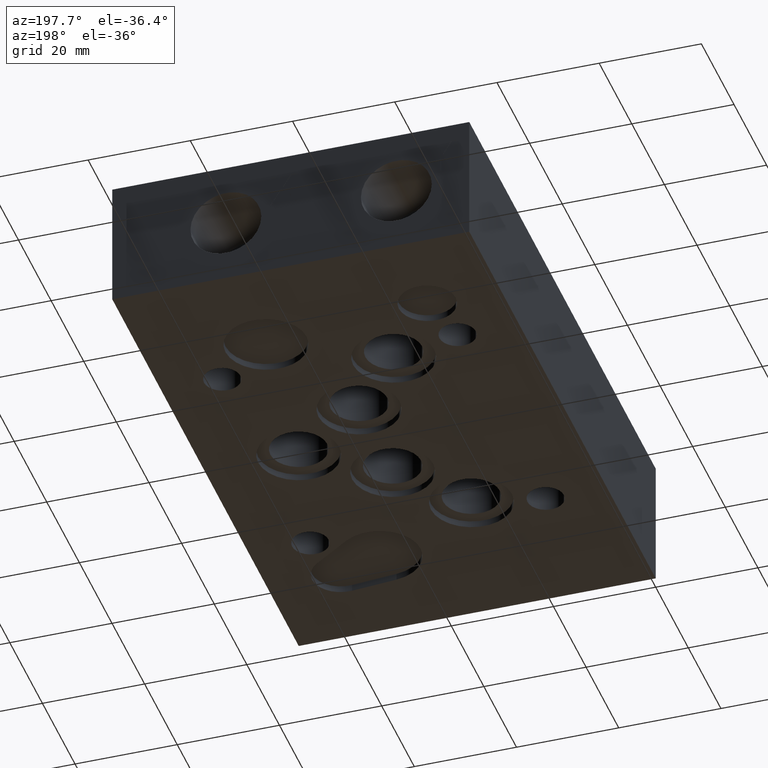
[diagram: clean part render]
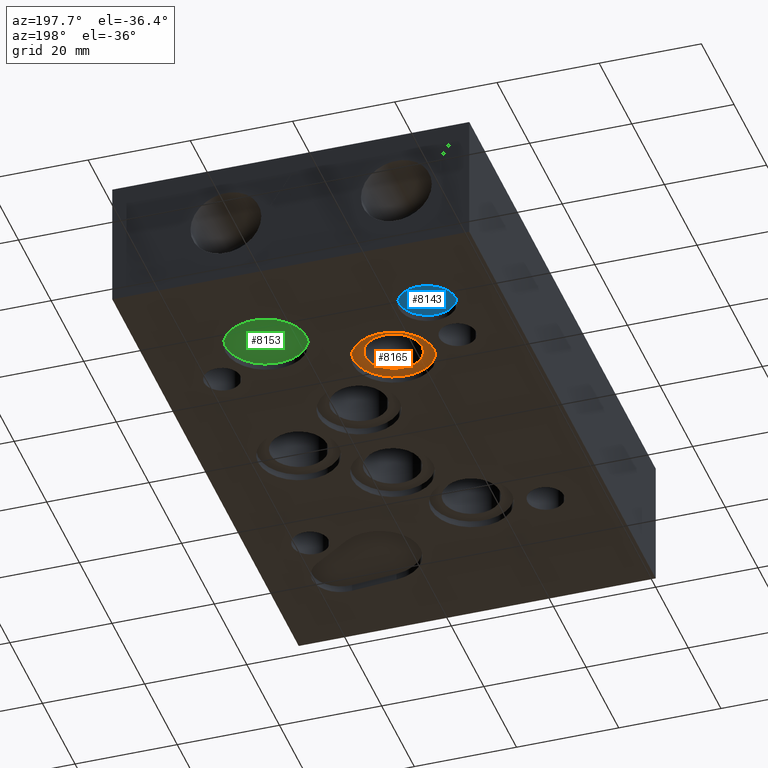
[diagram: same view with three faces highlighted in distinct colors, each labeled with its STEP entity id]
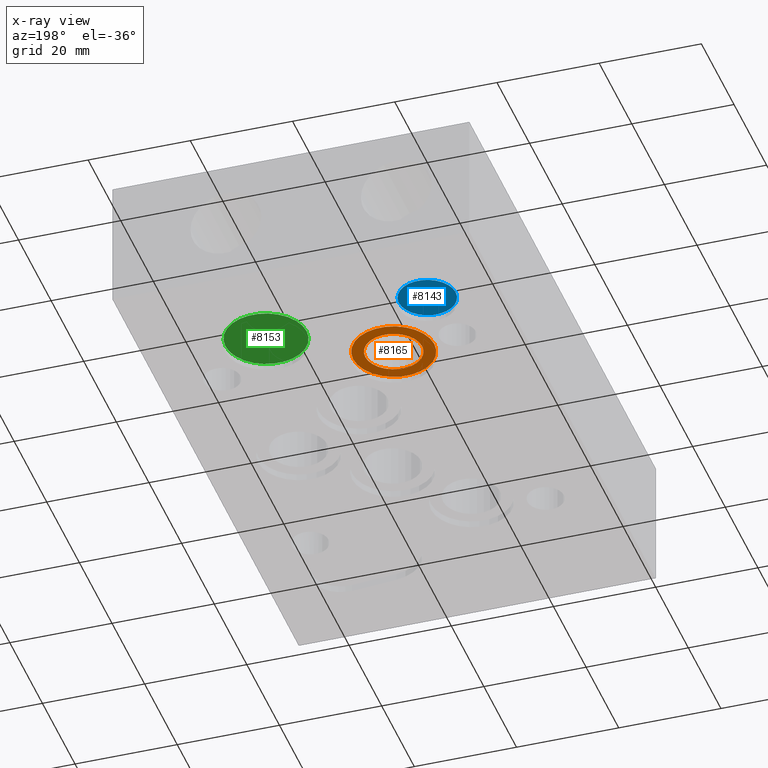
[diagram: x-ray of the same camera — body ghosted, the three highlighted faces saturated]
A machine part, auxiliary view with three faces highlighted in distinct colors.
The next image is the same camera in x-ray (body ghosted, the three faces saturated) — at least one of them is partly hidden behind the body in this view.
Their STEP definitions:

[orange] entity #8165 — the highlighted planar face has unit normal (0, 0, 1).
#600=FACE_BOUND('',#1564,.T.);
#665=CIRCLE('',#8581,7.9375);
#666=CIRCLE('',#8583,5.5626);
#1102=FACE_OUTER_BOUND('',#1563,.T.);
#1563=EDGE_LOOP('',(#7324));
#1564=EDGE_LOOP('',(#7325));
#4140=VERTEX_POINT('',#13383);
#4141=VERTEX_POINT('',#13387);
#5223=EDGE_CURVE('',#4140,#4140,#665,.T.);
#5224=EDGE_CURVE('',#4141,#4141,#666,.T.);
#7324=ORIENTED_EDGE('',*,*,#5223,.F.);
#7325=ORIENTED_EDGE('',*,*,#5224,.T.);
#7772=PLANE('',#8582);
#8165=ADVANCED_FACE('',(#1102,#600),#7772,.F.);
#8581=AXIS2_PLACEMENT_3D('',#13385,#10262,#10263);
#8582=AXIS2_PLACEMENT_3D('',#13386,#10264,#10265);
#8583=AXIS2_PLACEMENT_3D('',#13388,#10266,#10267);
#10262=DIRECTION('center_axis',(0.,0.,1.));
#10263=DIRECTION('ref_axis',(1.,0.,0.));
#10264=DIRECTION('center_axis',(0.,0.,1.));
#10265=DIRECTION('ref_axis',(1.,0.,0.));
#10266=DIRECTION('center_axis',(0.,0.,1.));
#10267=DIRECTION('ref_axis',(1.,0.,0.));
#13383=CARTESIAN_POINT('',(17.4879,80.9752,1.3208));
#13385=CARTESIAN_POINT('Origin',(25.4254,80.9752,1.3208));
#13386=CARTESIAN_POINT('Origin',(30.988,80.9752,1.3208));
#13387=CARTESIAN_POINT('',(19.8628,80.9752,1.3208));
#13388=CARTESIAN_POINT('Origin',(25.4254,80.9752,1.3208));

[blue] entity #8143 — the highlighted planar face has unit normal (0, 0, -1).
#642=CIRCLE('',#8536,5.5626);
#1080=FACE_OUTER_BOUND('',#1536,.T.);
#1536=EDGE_LOOP('',(#7234));
#4113=VERTEX_POINT('',#13179);
#5178=EDGE_CURVE('',#4113,#4113,#642,.T.);
#7234=ORIENTED_EDGE('',*,*,#5178,.T.);
#7766=PLANE('',#8537);
#8143=ADVANCED_FACE('',(#1080),#7766,.T.);
#8536=AXIS2_PLACEMENT_3D('',#13181,#10158,#10159);
#8537=AXIS2_PLACEMENT_3D('',#13182,#10160,#10161);
#10158=DIRECTION('center_axis',(0.,0.,-1.));
#10159=DIRECTION('ref_axis',(1.,0.,0.));
#10160=DIRECTION('center_axis',(0.,0.,-1.));
#10161=DIRECTION('ref_axis',(1.,0.,0.));
#13179=CARTESIAN_POINT('',(8.7376,95.25,1.3208));
#13181=CARTESIAN_POINT('Origin',(14.3002,95.25,1.3208));
#13182=CARTESIAN_POINT('Origin',(14.3002,95.25,1.3208));

[green] entity #8153 — the highlighted planar face has unit normal (0, 0, -1).
#655=CIRCLE('',#8559,7.9375);
#1090=FACE_OUTER_BOUND('',#1548,.T.);
#1548=EDGE_LOOP('',(#7285));
#4130=VERTEX_POINT('',#13344);
#5206=EDGE_CURVE('',#4130,#4130,#655,.T.);
#7285=ORIENTED_EDGE('',*,*,#5206,.T.);
#7767=PLANE('',#8560);
#8153=ADVANCED_FACE('',(#1090),#7767,.T.);
#8559=AXIS2_PLACEMENT_3D('',#13346,#10211,#10212);
#8560=AXIS2_PLACEMENT_3D('',#13347,#10213,#10214);
#10211=DIRECTION('center_axis',(0.,0.,-1.));
#10212=DIRECTION('ref_axis',(1.,0.,0.));
#10213=DIRECTION('center_axis',(0.,0.,-1.));
#10214=DIRECTION('ref_axis',(1.,0.,0.));
#13344=CARTESIAN_POINT('',(38.9255,92.075,1.3208));
#13346=CARTESIAN_POINT('Origin',(46.863,92.075,1.3208));
#13347=CARTESIAN_POINT('Origin',(46.863,92.075,1.3208));